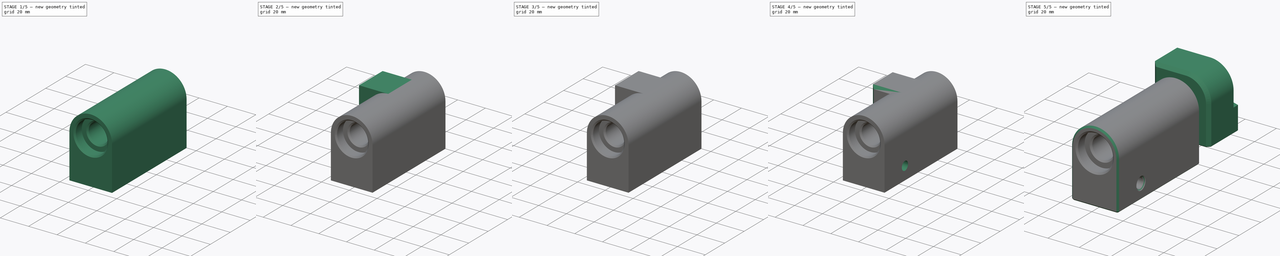
[diagram: build sequence overview — one tinted view per stage of 5, left to right]
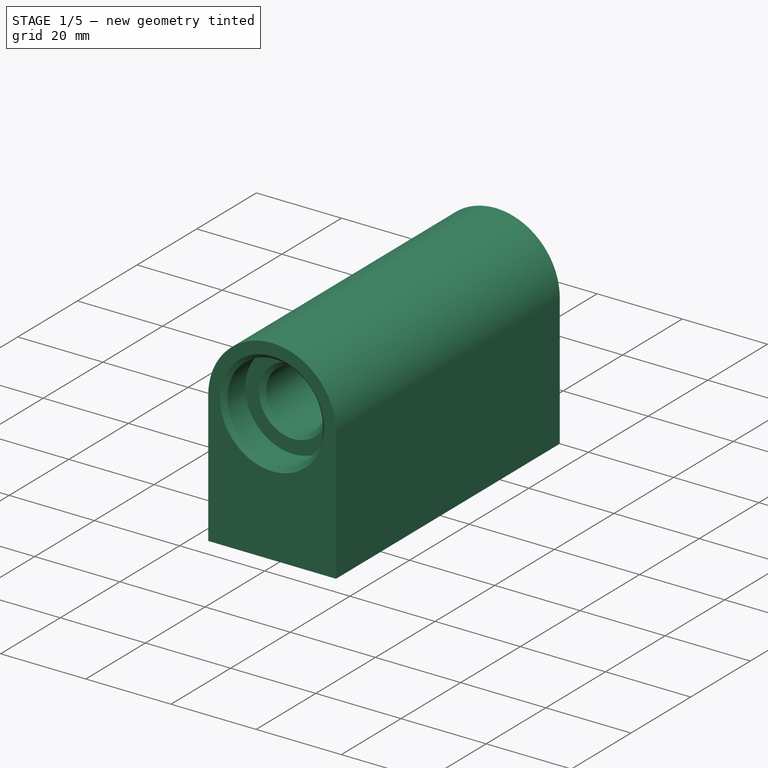
[diagram: stage 1 of 5 — iso view after this stage's code; geometry added in this stage tinted green]
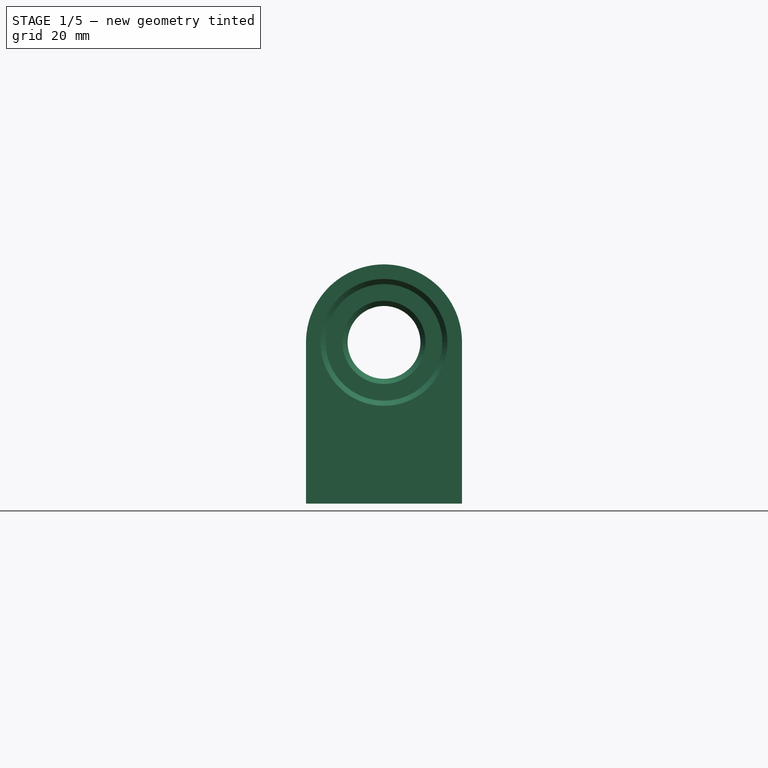
[diagram: stage 1 of 5 — front view after this stage's code; geometry added in this stage tinted green]
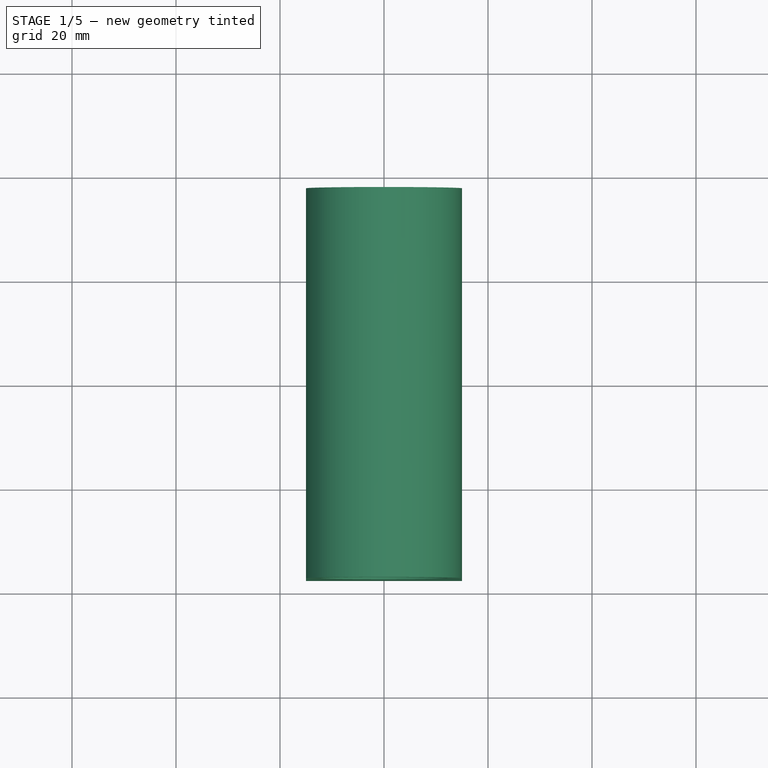
[diagram: stage 1 of 5 — top view after this stage's code; geometry added in this stage tinted green]
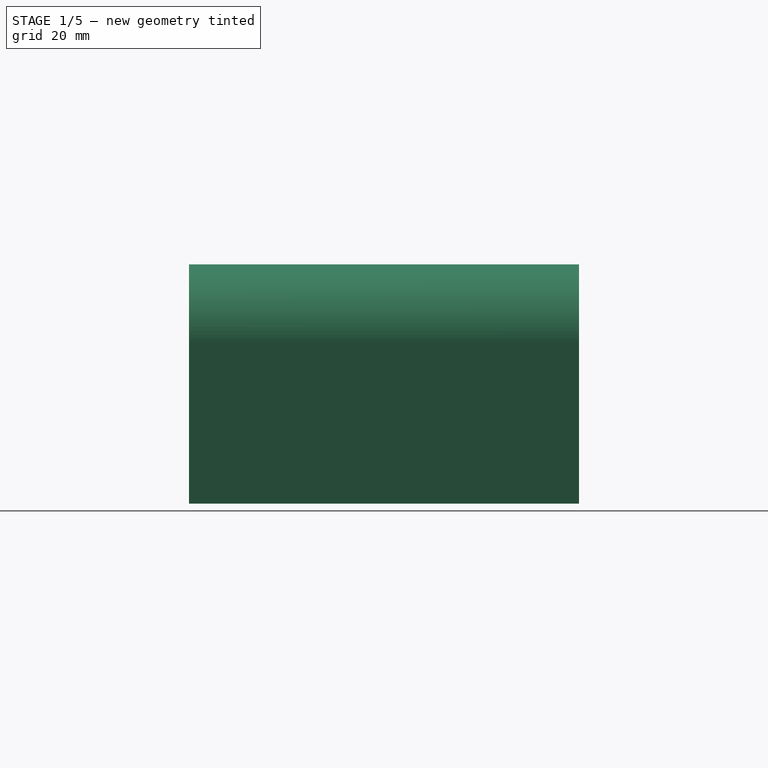
[diagram: stage 1 of 5 — right view after this stage's code; geometry added in this stage tinted green]
FCSTD DOCUMENT  (FreeCAD 1.2R20260120 (Git shallow))
Label: linear-actuatorFCStd
License: All rights reserved
LicenseURL: https://en.wikipedia.org/wiki/All_rights_reserved
objects: Sketcher::SketchObject×10, PartDesign::Chamfer×10, PartDesign::Pocket×7, Part::Feature×4, App::Point×4, PartDesign::Pad×3, PartDesign::Body×2, App::Part×2, PartDesign::Mirrored×1, PartDesign::Fillet×1, Part::Mirroring×1
note: 92 computed .brp shape members not serialized (recipe doc carries the construction recipe); baked Part::Feature solids carry a one-line shape summary decoded from their .brp

FEATURE [Part::Feature] Compound  label="Linearmotor"
  Placement = pos=(34.4295,-24.7767,-32.4545) rot=(0,0,1;0rad)
  shape: bbox 42 x 82 x 204.7 mm, 79 faces, 2 solids (baked)
FEATURE [Part::Feature] Compound001  label="Schrauben für Motor"
  Placement = pos=(34.4295,-24.7767,-32.4545) rot=(0,0,1;0rad)
  shape: bbox 8.679 x 36.43 x 11.48 mm, 102 faces, 2 solids (baked)
FEATURE [App::Point] Origin077  label="Origine"
  Role = Origin
FEATURE [App::Point] Origin078  label="Origine001"
  Role = Origin
FEATURE [App::Point] Origin079  label="Origine002"
  Role = Origin
FEATURE [App::Point] Origin080  label="Origine003"
  Role = Origin
FEATURE [Sketcher::SketchObject] Sketch073
  ArcFitTolerance = 1e-06
  AttachmentSupport = -> [XZ_Plane028]
  ExternalTypes = [0]
  FullyConstrained = true
  MakeInternals = false
  MapMode = 5
  Placement = pos=(0,0,0) rot=(1,0,0;1.5708rad)
  sketch-geometry (6):
    g0: ArcOfCircle CenterX=0 CenterY=0 CenterZ=0 NormalX=0 NormalY=0 NormalZ=1 AngleXU=0 Radius=15 StartAngle=4.1875e-12 EndAngle=3.14159
    g1: LineSegment StartX=-15 StartY=9.40932e-11 StartZ=0 EndX=-15 EndY=-31 EndZ=0
    g2: LineSegment StartX=-15 StartY=-31 StartZ=0 EndX=15 EndY=-31 EndZ=0
    g3: LineSegment StartX=15 StartY=-31 StartZ=0 EndX=15 EndY=0 EndZ=0
    g4: Circle [constr] CenterX=0 CenterY=0 CenterZ=0 NormalX=0 NormalY=0 NormalZ=1 AngleXU=0 Radius=11
    g5: GeomPoint [constr] X=0 Y=-11 Z=0
  constraints (16):
    c: Coincident(g0,g-1)
    c: PointOnObject(g0,g-1)
    c: PointOnObject(g0,g-1)
    c: Coincident(g1,g0)
    c: Vertical(g1)
    c: Coincident(g1,g2)
    c: Horizontal(g2)
    c: Coincident(g2,g3)
    c: Coincident(g3,g0)
    c: Vertical(g3)
    c: Coincident(g4,g0)
    c: Diameter(g4) = 22
    c: DistanceX(g2,g2) = 30
    c: PointOnObject(g5,g4)
    c: PointOnObject(g5,g-2)
    c: DistanceY(g2,g5) = 20
FEATURE [PartDesign::Pad] Pad038
  AlongSketchNormal = false
  Direction = (0,-1,2e-16)
  Length = 75
  Length2 = 10
  Placement = pos=(0,0,0) rot=(1,0,0;1.5708rad)
  Profile = -> Sketch073
  ReferenceAxis = -> Sketch073 [N_Axis]
  Refine = true
  SideType = 2
  Suppressed = false
  Type = 0
  Type2 = 0
FEATURE [Sketcher::SketchObject] Sketch074
  ArcFitTolerance = 1e-06
  AttachmentSupport = -> [XZ_Plane028]
  ExternalTypes = [0]
  FullyConstrained = true
  MakeInternals = false
  MapMode = 5
  Placement = pos=(0,0,0) rot=(1,0,0;1.5708rad)
  sketch-geometry (1):
    g0: Circle CenterX=0 CenterY=0 CenterZ=0 NormalX=0 NormalY=0 NormalZ=1 AngleXU=0 Radius=7
  constraints (2):
    c: Coincident(g0,g-1)
    c: Diameter(g0) = 14
FEATURE [PartDesign::Pocket] Pocket033
  AlongSketchNormal = false
  BaseFeature = -> Pad038
  Direction = (0,1,-2e-16)
  Length = 100
  Length2 = 10
  Placement = pos=(0,0,0) rot=(1,0,0;1.5708rad)
  Profile = -> Sketch074
  ReferenceAxis = -> Sketch074 [N_Axis]
  Refine = true
  SideType = 2
  Suppressed = false
  Type = 0
  Type2 = 0
FEATURE [Sketcher::SketchObject] Sketch075
  ArcFitTolerance = 1e-06
  AttachmentSupport = -> [Pocket033]
  ExternalTypes = [0]
  FullyConstrained = true
  MakeInternals = false
  MapMode = 5
  Placement = pos=(0,-37.5,0) rot=(1,0,0;1.5708rad)
  sketch-geometry (1):
    g0: Circle CenterX=0 CenterY=0 CenterZ=0 NormalX=0 NormalY=0 NormalZ=1 AngleXU=0 Radius=11.2
  constraints (2):
    c: Coincident(g0,g-1)
    c: Diameter(g0) = 22.4
FEATURE [PartDesign::Pocket] Pocket034
  AlongSketchNormal = false
  BaseFeature = -> Pocket033
  Direction = (0,1,-2e-16)
  Length = 7
  Length2 = 10
  Placement = pos=(0,0,0) rot=(1,0,0;1.5708rad)
  Profile = -> Sketch075
  ReferenceAxis = -> Sketch075 [N_Axis]
  Refine = true
  SideType = 0
  Suppressed = false
  Type = 0
  Type2 = 0
FEATURE [PartDesign::Mirrored] Mirrored002
  BaseFeature = -> Pocket034
  MirrorPlane = -> XZ_Plane028
  Originals = -> [Pocket034]
  Placement = pos=(0,0,0) rot=(1,0,0;1.5708rad)
  Refine = true
  Suppressed = false
  TransformMode = 0
FEATURE [PartDesign::Chamfer] Chamfer033
  Angle = 45
  Base = -> Mirrored002 [Edge12,Edge19,Edge14,Edge20]
  BaseFeature = -> Mirrored002
  ChamferType = 0
  FlipDirection = false
  Placement = pos=(0,0,0) rot=(1,0,0;1.5708rad)
  Refine = true
  Size = 1
  Size2 = 1
  SupportTransform = false
  Suppressed = false
  UseAllEdges = false
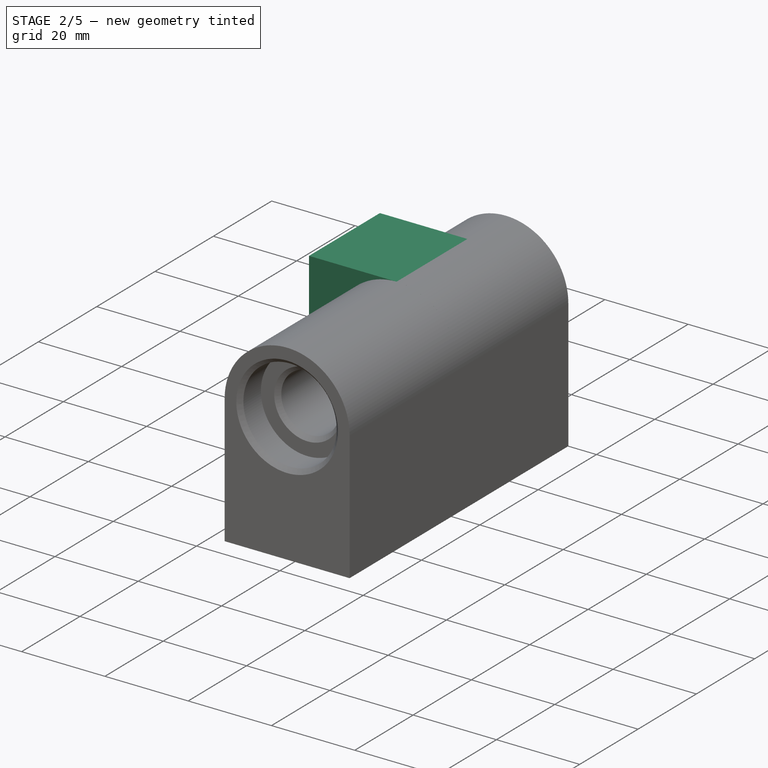
[diagram: stage 2 of 5 — iso view after this stage's code; geometry added in this stage tinted green]
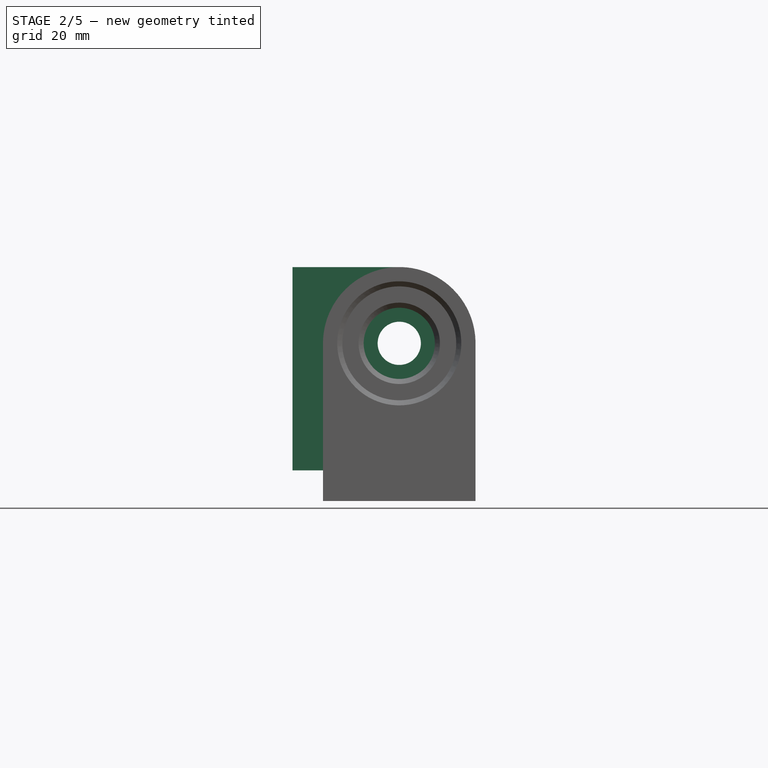
[diagram: stage 2 of 5 — front view after this stage's code; geometry added in this stage tinted green]
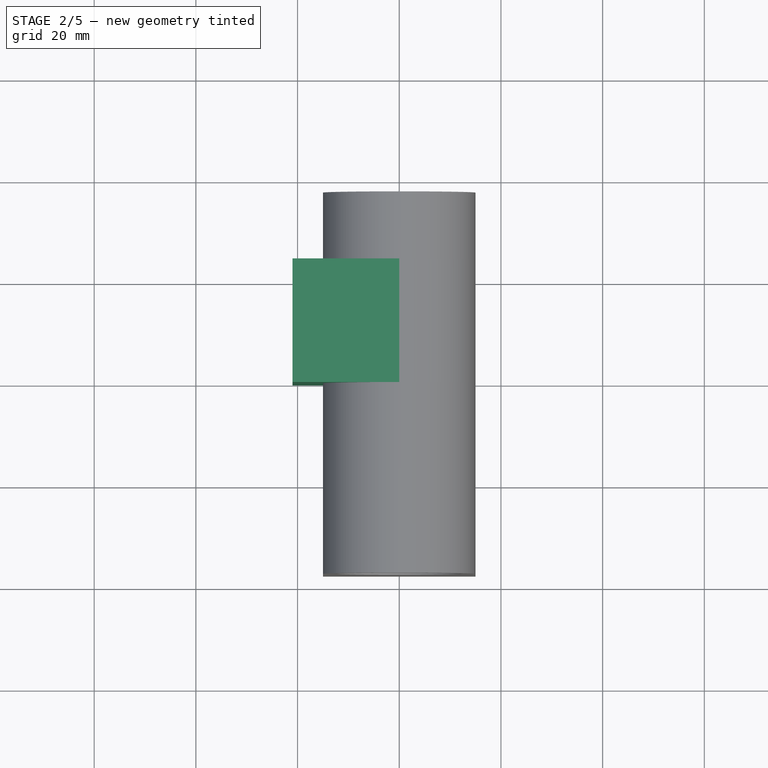
[diagram: stage 2 of 5 — top view after this stage's code; geometry added in this stage tinted green]
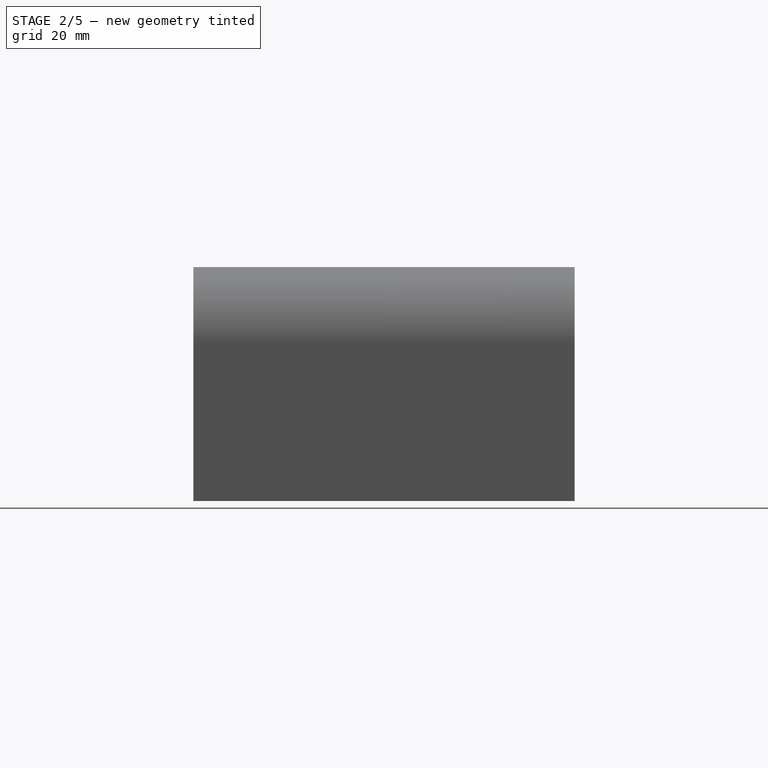
[diagram: stage 2 of 5 — right view after this stage's code; geometry added in this stage tinted green]
FEATURE [Sketcher::SketchObject] Sketch085
  ArcFitTolerance = 1e-06
  AttachmentSupport = -> [Chamfer033]
  ExternalTypes = [0]
  FullyConstrained = true
  MakeInternals = false
  MapMode = 5
  Placement = pos=(0,-6.9e-15,-31) rot=(1,0,0;3.14159rad)
  sketch-geometry (10):
    g0: LineSegment [constr] StartX=-19.5 StartY=-37.5 StartZ=0 EndX=-19.5 EndY=37.5 EndZ=0
    g1: LineSegment [constr] StartX=-19.5 StartY=37.5 StartZ=0 EndX=19.5 EndY=37.5 EndZ=0
    g2: LineSegment [constr] StartX=19.5 StartY=37.5 StartZ=0 EndX=19.5 EndY=-37.5 EndZ=0
    g3: LineSegment [constr] StartX=19.5 StartY=-37.5 StartZ=0 EndX=-19.5 EndY=-37.5 EndZ=0
    g4: GeomPoint [constr] X=0 Y=0 Z=0
    g5: LineSegment StartX=-9 StartY=25.5 StartZ=0 EndX=-9 EndY=7.5 EndZ=0
    g6: LineSegment StartX=-9 StartY=7.5 StartZ=0 EndX=9 EndY=7.5 EndZ=0
    g7: LineSegment StartX=9 StartY=7.5 StartZ=0 EndX=9 EndY=25.5 EndZ=0
    g8: LineSegment StartX=9 StartY=25.5 StartZ=0 EndX=-9 EndY=25.5 EndZ=0
    g9: GeomPoint [constr] X=0 Y=16.5 Z=0
  constraints (25):
    c: Coincident(g0,g1)
    c: Coincident(g1,g2)
    c: Coincident(g2,g3)
    c: Coincident(g3,g0)
    c: Horizontal(g1)
    c: Horizontal(g3)
    c: Vertical(g0)
    c: Vertical(g2)
    c: Symmetric(g1,g0,g4)
    c: Coincident(g4,g-1)
    c: DistanceX(g1,g1) = 39
    c: DistanceY(g0,g0) = 75
    c: Coincident(g5,g6)
    c: Coincident(g6,g7)
    c: Coincident(g7,g8)
    c: Coincident(g8,g5)
    c: Horizontal(g6)
    c: Horizontal(g8)
    c: Vertical(g5)
    c: Vertical(g7)
    c: Symmetric(g6,g5,g9)
    c: PointOnObject(g9,g-2)
    c: DistanceY(g6,g1) = 30
    c: DistanceY(g7,g1) = 12
    c: DistanceX(g8,g8) = 18
FEATURE [PartDesign::Pocket] Pocket043
  AlongSketchNormal = false
  BaseFeature = -> Chamfer033
  Direction = (0,0,1)
  Length = 19
  Length2 = 10
  Placement = pos=(0,0,0) rot=(1,0,0;1.5708rad)
  Profile = -> Sketch085
  ReferenceAxis = -> Sketch085 [N_Axis]
  Refine = true
  SideType = 0
  Suppressed = false
  Type = 0
  Type2 = 0
FEATURE [PartDesign::Chamfer] Chamfer036
  Angle = 45
  Base = -> Pocket043 [Edge23,Edge26,Edge28,Edge24]
  BaseFeature = -> Pocket043
  ChamferType = 0
  FlipDirection = false
  Placement = pos=(0,0,0) rot=(1,0,0;1.5708rad)
  Refine = true
  Size = 2
  Size2 = 1
  SupportTransform = false
  Suppressed = false
  UseAllEdges = false
FEATURE [PartDesign::Body] Body023  label="BrideLinear"
  AllowCompound = true
  Group = -> [Sketch073,Pad038,Sketch074,Pocket033,Sketch075,Pocket034,Mirrored002,Chamfer033,Sketch085,Pocket043,Chamfer036,Sketch086,Pocket044,Chamfer037,Chamfer038,Chamfer039]
  Origin = -> Origin034
  Tip = -> Chamfer039
FEATURE [Sketcher::SketchObject] Sketch087
  ArcFitTolerance = 1e-06
  AttachmentSupport = -> [XZ_Plane029]
  ExternalTypes = [0]
  FullyConstrained = true
  MakeInternals = false
  MapMode = 5
  Placement = pos=(0,0,0) rot=(1,0,0;1.5708rad)
  sketch-geometry (5):
    g0: Circle CenterX=0 CenterY=0 CenterZ=0 NormalX=0 NormalY=0 NormalZ=1 AngleXU=0 Radius=4.25
    g1: LineSegment StartX=-21 StartY=-25 StartZ=0 EndX=15 EndY=-25 EndZ=0
    g2: LineSegment StartX=15 StartY=-25 StartZ=0 EndX=15 EndY=15 EndZ=0
    g3: LineSegment StartX=15 StartY=15 StartZ=0 EndX=-21 EndY=15 EndZ=0
    g4: LineSegment StartX=-21 StartY=15 StartZ=0 EndX=-21 EndY=-25 EndZ=0
  constraints (14):
    c: Coincident(g0,g-1)
    c: Diameter(g0) = 8.5
    c: Coincident(g1,g2)
    c: Coincident(g2,g3)
    c: Coincident(g3,g4)
    c: Coincident(g4,g1)
    c: Horizontal(g1)
    c: Horizontal(g3)
    c: Vertical(g2)
    c: Vertical(g4)
    c: DistanceX(g3,g0) = 21
    c: DistanceY(g0,g3) = 15
    c: DistanceX(g0,g2) = 15
    c: DistanceY(g4,g4) = 40
FEATURE [PartDesign::Pad] Pad039
  AlongSketchNormal = false
  Direction = (0,-1,2e-16)
  Length = 24.3
  Length2 = 10
  Placement = pos=(0,0,0) rot=(1,0,0;1.5708rad)
  Profile = -> Sketch087
  ReferenceAxis = -> Sketch087 [N_Axis]
  Refine = true
  Reversed = true
  SideType = 0
  Suppressed = false
  Type = 0
  Type2 = 0
FEATURE [PartDesign::Fillet] Fillet015
  Base = -> Pad039 [Edge5]
  BaseFeature = -> Pad039
  Placement = pos=(0,0,0) rot=(1,0,0;1.5708rad)
  Radius = 15
  Refine = true
  SupportTransform = false
  Suppressed = false
  UseAllEdges = false
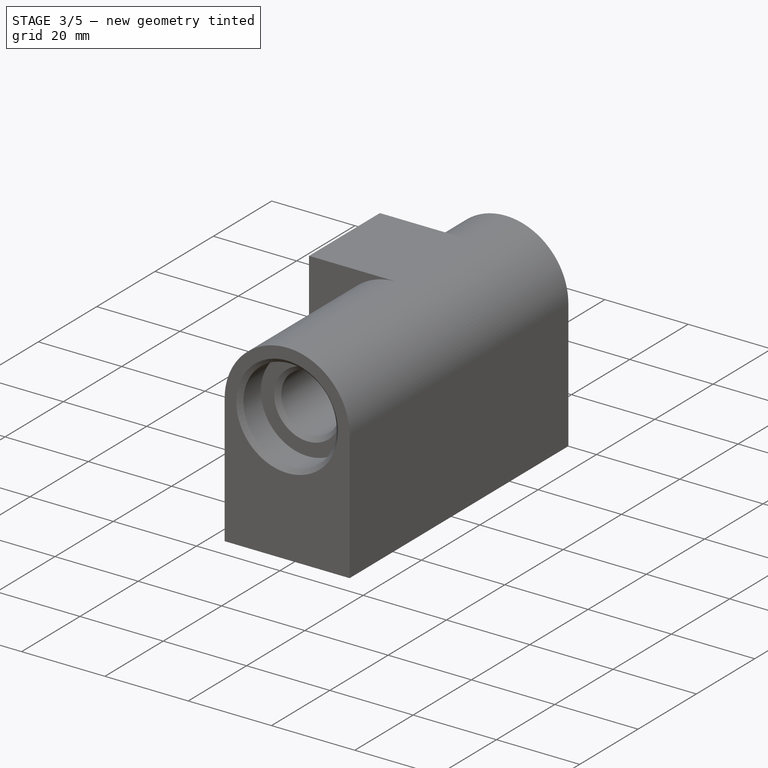
[diagram: stage 3 of 5 — iso view after this stage's code; geometry added in this stage tinted green]
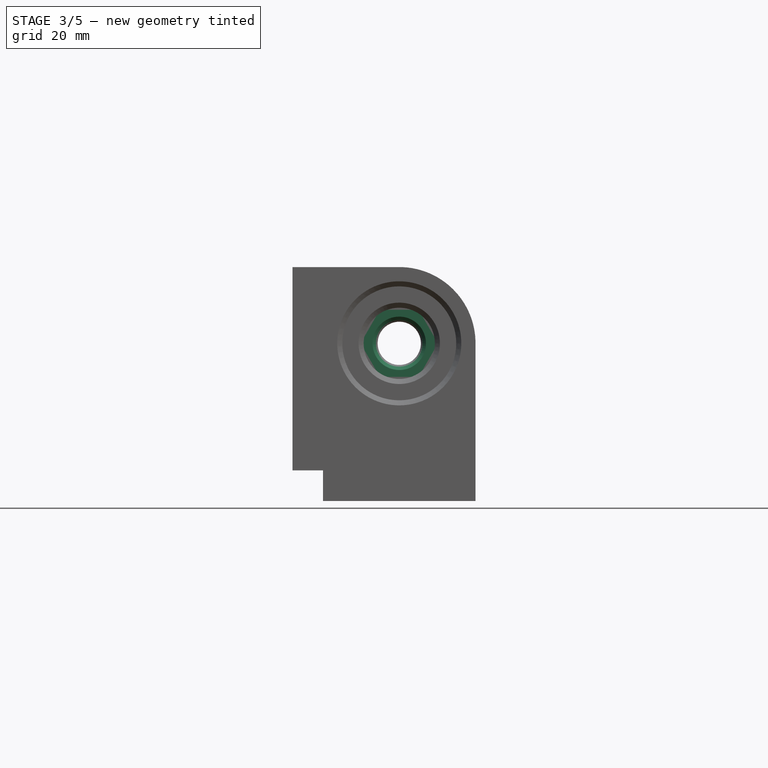
[diagram: stage 3 of 5 — front view after this stage's code; geometry added in this stage tinted green]
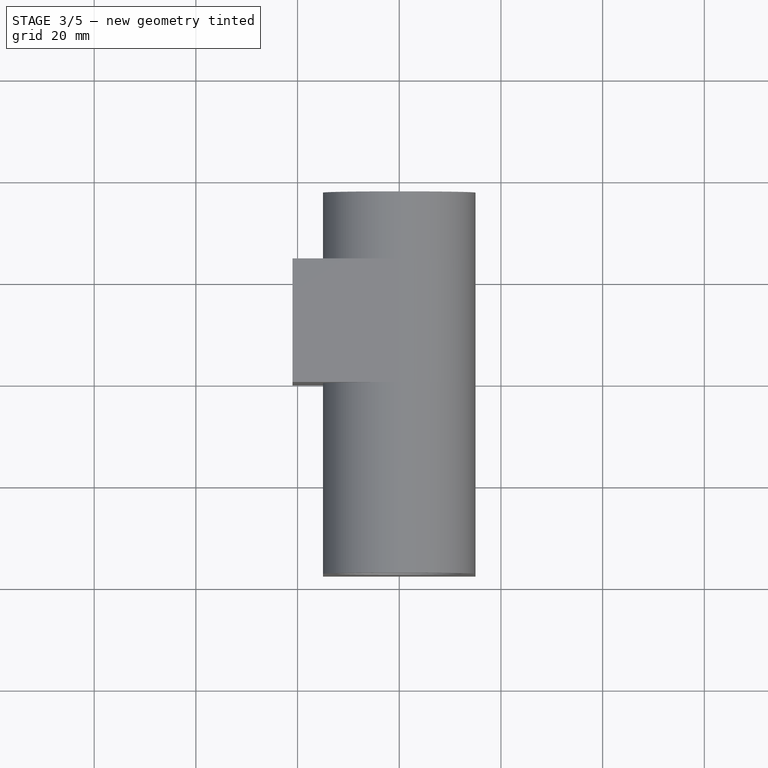
[diagram: stage 3 of 5 — top view after this stage's code; geometry added in this stage tinted green]
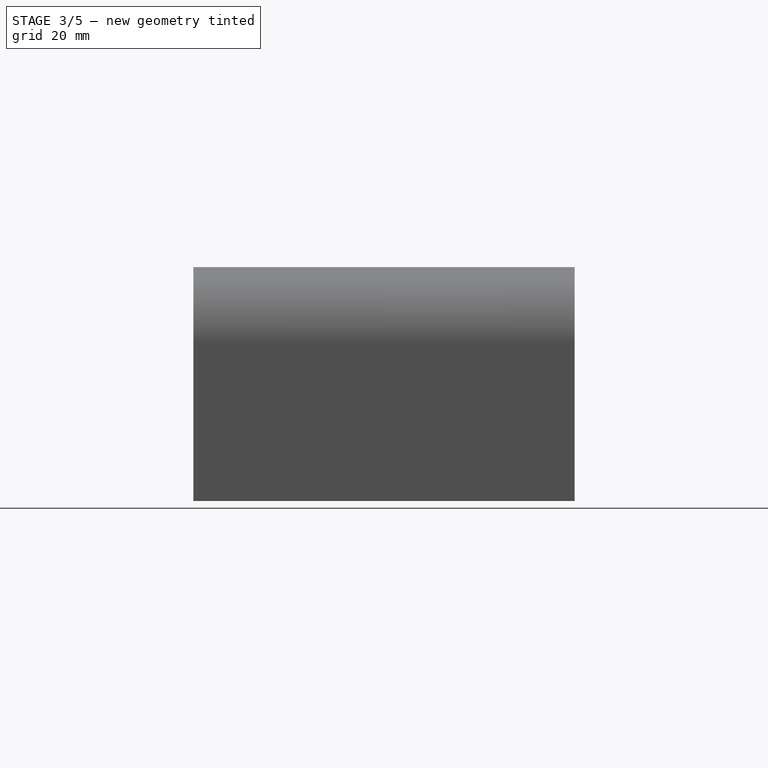
[diagram: stage 3 of 5 — right view after this stage's code; geometry added in this stage tinted green]
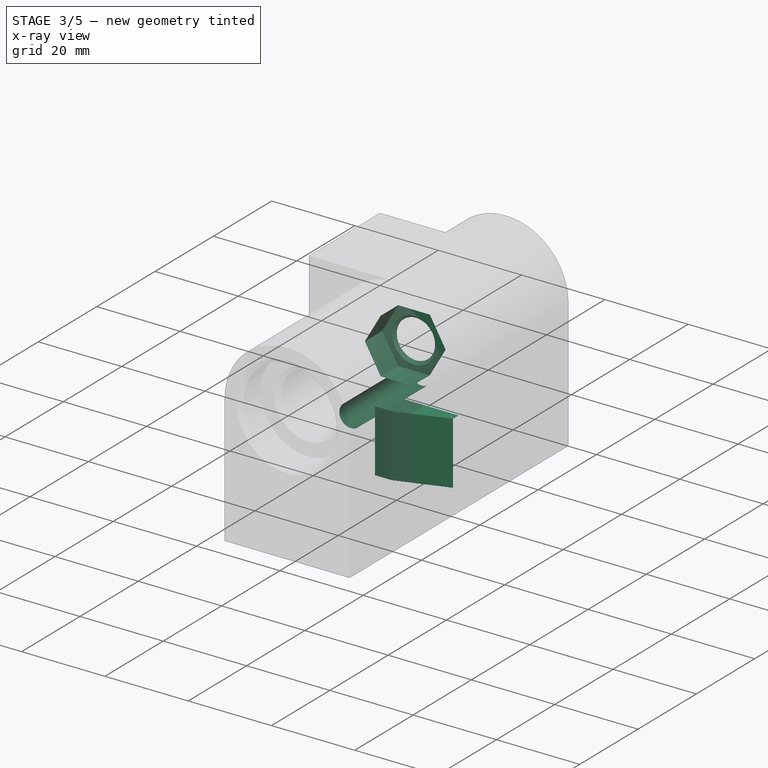
[diagram: stage 3 of 5 — x-ray composite at the iso view; earlier geometry ghosted, this stage's added geometry solid]
FEATURE [Sketcher::SketchObject] Sketch088
  ArcFitTolerance = 1e-06
  AttachmentSupport = -> [Fillet015]
  ExternalTypes = [0]
  FullyConstrained = true
  MakeInternals = false
  MapMode = 5
  Placement = pos=(0,-1e-15,0) rot=(1,0,0;1.5708rad)
  sketch-geometry (7):
    g0: LineSegment StartX=7.62102 StartY=0 StartZ=0 EndX=3.81051 EndY=6.6 EndZ=0
    g1: LineSegment StartX=3.81051 StartY=6.6 StartZ=0 EndX=-3.81051 EndY=6.6 EndZ=0
    g2: LineSegment StartX=-3.81051 StartY=6.6 StartZ=0 EndX=-7.62102 EndY=9e-16 EndZ=0
    g3: LineSegment StartX=-7.62102 StartY=1e-15 StartZ=0 EndX=-3.81051 EndY=-6.6 EndZ=0
    g4: LineSegment StartX=-3.81051 StartY=-6.6 StartZ=0 EndX=3.81051 EndY=-6.6 EndZ=0
    g5: LineSegment StartX=3.81051 StartY=-6.6 StartZ=0 EndX=7.62102 EndY=0 EndZ=0
    g6: Circle [constr] CenterX=0 CenterY=0 CenterZ=0 NormalX=0 NormalY=0 NormalZ=1 AngleXU=0 Radius=7.62102
  constraints (16):
    c: Coincident(g0,g1)
    c: Coincident(g1,g2)
    c: Coincident(g2,g3)
    c: Coincident(g3,g4)
    c: Coincident(g4,g5)
    c: Coincident(g5,g0)
    c: Equal(g0, g1-g5) x5
    c: PointOnObject(g0,g6)
    c: PointOnObject(g1,g6)
    c: PointOnObject(g2,g6)
    c: PointOnObject(g3,g6)
    c: PointOnObject(g4,g6)
    c: PointOnObject(g5,g6)
    c: Coincident(g6,g-1)
    c: DistanceY(g4,g0) = 13.2
    c: PointOnObject(g0,g-1)
FEATURE [PartDesign::Pocket] Pocket045
  AlongSketchNormal = false
  BaseFeature = -> Fillet015
  Direction = (0,1,-2e-16)
  Length = 6
  Length2 = 10
  Placement = pos=(0,0,0) rot=(1,0,0;1.5708rad)
  Profile = -> Sketch088
  ReferenceAxis = -> Sketch088 [N_Axis]
  Refine = true
  SideType = 0
  Suppressed = false
  Type = 0
  Type2 = 0
FEATURE [PartDesign::Chamfer] Chamfer040
  Angle = 45
  Base = -> Pocket045 [Edge35]
  BaseFeature = -> Pocket045
  ChamferType = 0
  FlipDirection = false
  Placement = pos=(0,0,0) rot=(1,0,0;1.5708rad)
  Refine = true
  Size = 1
  Size2 = 1
  SupportTransform = false
  Suppressed = false
  UseAllEdges = false
FEATURE [Sketcher::SketchObject] Sketch089
  ArcFitTolerance = 1e-06
  AttachmentSupport = -> [Chamfer040]
  ExternalTypes = [0]
  FullyConstrained = true
  MakeInternals = false
  MapMode = 5
  Placement = pos=(0,-1e-15,0) rot=(1,0,0;1.5708rad)
  sketch-geometry (4):
    g0: LineSegment StartX=15 StartY=-25 StartZ=0 EndX=-1 EndY=-25 EndZ=0
    g1: LineSegment StartX=-1 StartY=-25 StartZ=0 EndX=-1 EndY=-10 EndZ=0
    g2: LineSegment StartX=-1 StartY=-10 StartZ=0 EndX=15 EndY=-10 EndZ=0
    g3: LineSegment StartX=15 StartY=-10 StartZ=0 EndX=15 EndY=-25 EndZ=0
  constraints (11):
    c: Coincident(g0,g1)
    c: Coincident(g1,g2)
    c: Coincident(g2,g3)
    c: Coincident(g3,g0)
    c: Horizontal(g0)
    c: Horizontal(g2)
    c: Vertical(g1)
    c: Vertical(g3)
    c: Coincident(g0,g-3)
    c: DistanceX(g-3,g0) = 20
    c: DistanceY(g1,g1) = 15
FEATURE [PartDesign::Pad] Pad040
  AlongSketchNormal = false
  BaseFeature = -> Chamfer040
  Direction = (0,-1,2e-16)
  Length = 6
  Length2 = 10
  Placement = pos=(0,0,0) rot=(1,0,0;1.5708rad)
  Profile = -> Sketch089
  ReferenceAxis = -> Sketch089 [N_Axis]
  Refine = true
  SideType = 0
  Suppressed = false
  Type = 0
  Type2 = 0
FEATURE [PartDesign::Chamfer] Chamfer041
  Angle = 45
  Base = -> Pad040 [Edge45]
  BaseFeature = -> Pad040
  ChamferType = 1
  FlipDirection = false
  Placement = pos=(0,0,0) rot=(1,0,0;1.5708rad)
  Refine = true
  Size = 12
  Size2 = 4
  SupportTransform = false
  Suppressed = false
  UseAllEdges = false
FEATURE [Sketcher::SketchObject] Sketch090
  ArcFitTolerance = 1e-06
  AttachmentOffset = pos=(0,0,0) rot=(0,0,1;3.14159rad)
  AttachmentSupport = -> [Chamfer041]
  ExternalTypes = [0]
  FullyConstrained = true
  MakeInternals = false
  MapMode = 5
  Placement = pos=(0,24.3,0) rot=(0,0.707107,0.707107;3.14159rad)
  sketch-geometry (1):
    g0: Circle CenterX=11 CenterY=-17 CenterZ=0 NormalX=0 NormalY=0 NormalZ=1 AngleXU=0 Radius=2.75
  constraints (3):
    c: DistanceX(g0,g-4) = 10
    c: Diameter(g0) = 5.5
    c: DistanceY(g-4,g0) = 8
FEATURE [PartDesign::Pocket] Pocket046
  AlongSketchNormal = false
  BaseFeature = -> Chamfer041
  Direction = (0,-1,-2e-16)
  Length = 40
  Length2 = 10
  Placement = pos=(0,0,0) rot=(1,0,0;1.5708rad)
  Profile = -> Sketch090
  ReferenceAxis = -> Sketch090 [N_Axis]
  Refine = true
  SideType = 0
  Suppressed = false
  Type = 0
  Type2 = 0
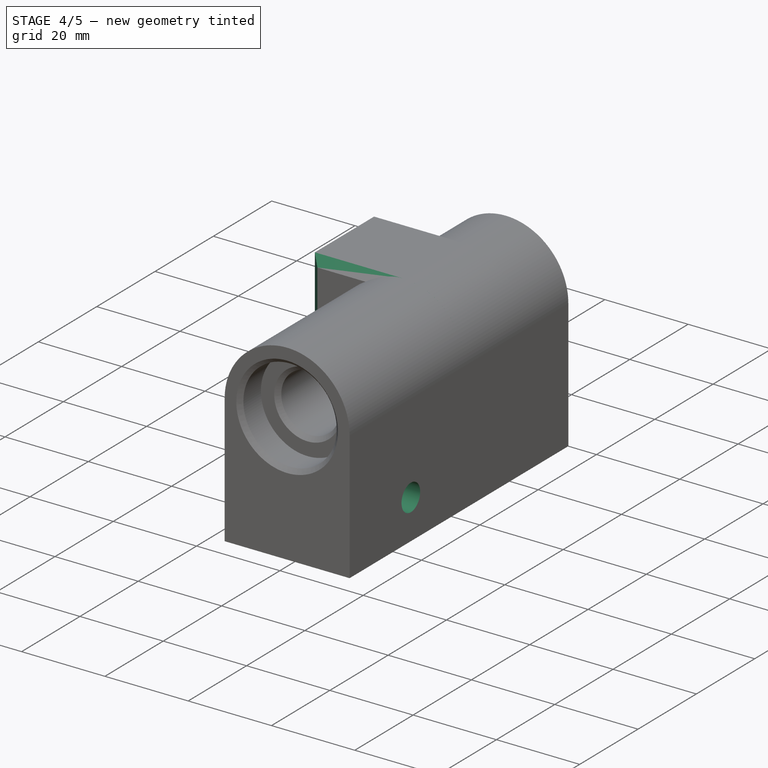
[diagram: stage 4 of 5 — iso view after this stage's code; geometry added in this stage tinted green]
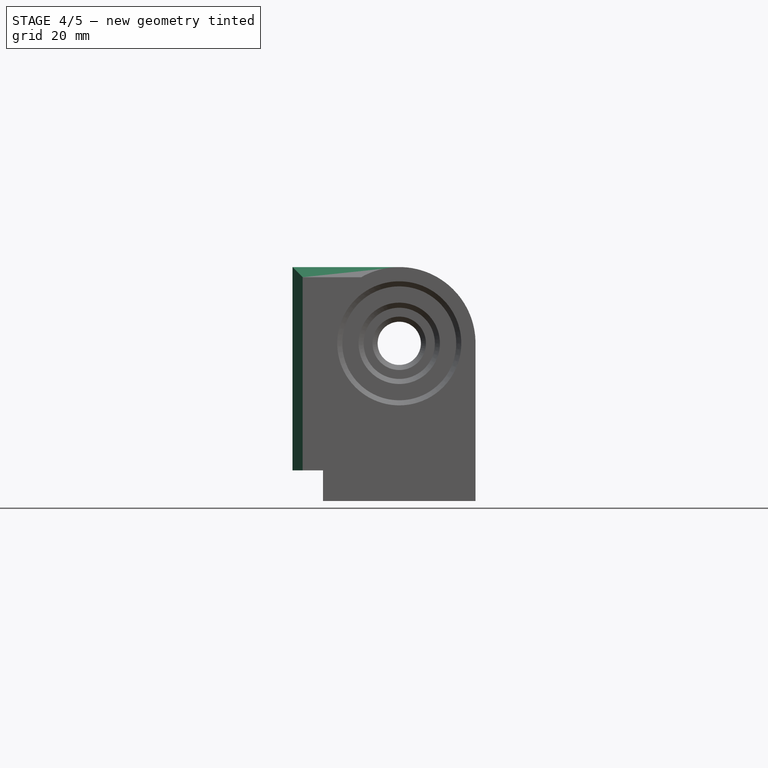
[diagram: stage 4 of 5 — front view after this stage's code; geometry added in this stage tinted green]
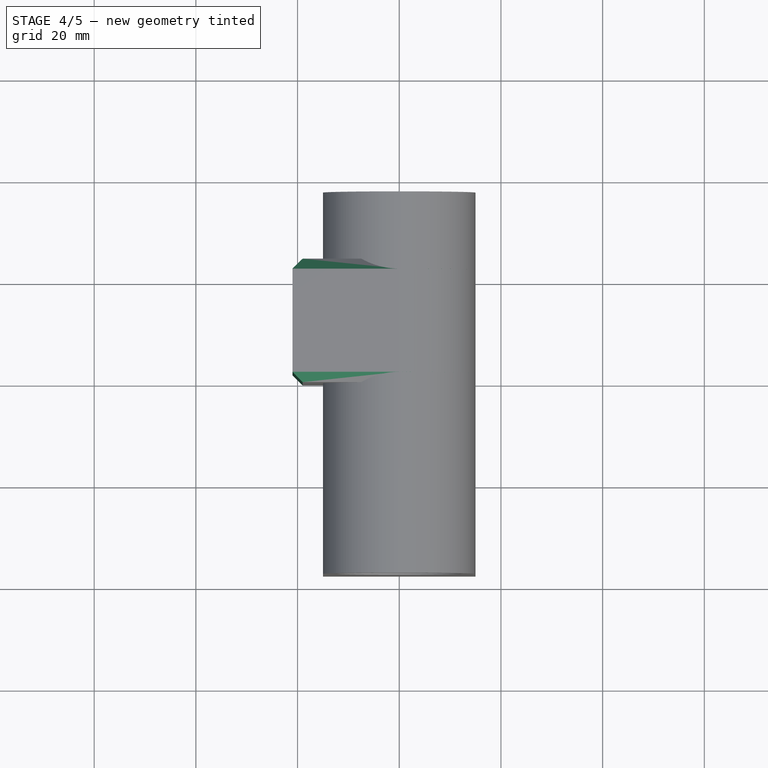
[diagram: stage 4 of 5 — top view after this stage's code; geometry added in this stage tinted green]
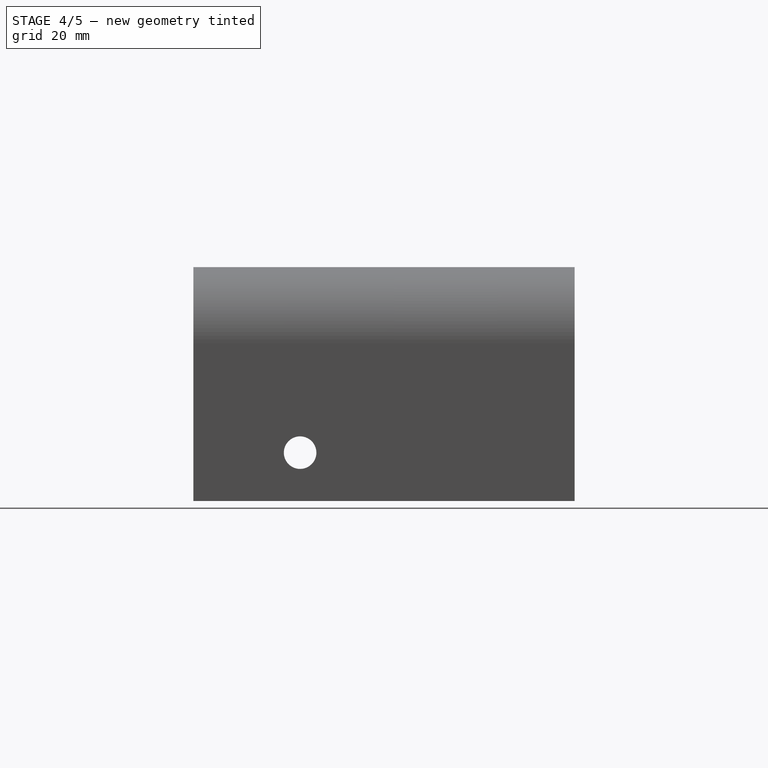
[diagram: stage 4 of 5 — right view after this stage's code; geometry added in this stage tinted green]
FEATURE [Sketcher::SketchObject] Sketch086
  ArcFitTolerance = 1e-06
  AttachmentSupport = -> [Chamfer036]
  ExternalGeometry = -> [Chamfer036]
  ExternalTypes = [0,0]
  FullyConstrained = true
  MakeInternals = false
  MapMode = 5
  Placement = pos=(9,0,0) rot=(0.707107,0,-0.707107;3.14159rad)
  sketch-geometry (1):
    g0: Circle CenterX=21.5 CenterY=16.5 CenterZ=0 NormalX=0 NormalY=0 NormalZ=1 AngleXU=0 Radius=3.2
  constraints (2):
    c: Diameter(g0) = 6.4
    c: Symmetric(g-4,g-3,g0)
FEATURE [PartDesign::Pocket] Pocket044
  AlongSketchNormal = false
  BaseFeature = -> Chamfer036
  Direction = (1,0,2e-16)
  Length = 5
  Length2 = 10
  Placement = pos=(0,0,0) rot=(1,0,0;1.5708rad)
  Profile = -> Sketch086
  ReferenceAxis = -> Sketch086 [N_Axis]
  Refine = true
  SideType = 2
  Suppressed = false
  Type = 1
  Type2 = 0
FEATURE [Sketcher::SketchObject] Sketch091
  ArcFitTolerance = 1e-06
  AttachmentOffset = pos=(0,0,0) rot=(0,0,1;3.14159rad)
  AttachmentSupport = -> [Pocket046]
  ExternalTypes = [0]
  FullyConstrained = true
  MakeInternals = false
  MapMode = 5
  Placement = pos=(0,24.3,0) rot=(0,0.707107,0.707107;3.14159rad)
  sketch-geometry (1):
    g0: Circle CenterX=11 CenterY=-17 CenterZ=0 NormalX=0 NormalY=0 NormalZ=1 AngleXU=0 Radius=5.5
  constraints (2):
    c: Coincident(g0,g-3)
    c: Diameter(g0) = 11
FEATURE [PartDesign::Pocket] Pocket047
  AlongSketchNormal = false
  BaseFeature = -> Pocket046
  Direction = (0,-1,-2e-16)
  Length = 11
  Length2 = 10
  Placement = pos=(0,0,0) rot=(1,0,0;1.5708rad)
  Profile = -> Sketch091
  ReferenceAxis = -> Sketch091 [N_Axis]
  Refine = true
  SideType = 0
  Suppressed = false
  Type = 0
  Type2 = 0
FEATURE [PartDesign::Chamfer] Chamfer042
  Angle = 45
  Base = -> Pocket047 [Edge34,Edge35,Edge37]
  BaseFeature = -> Pocket047
  ChamferType = 0
  FlipDirection = false
  Placement = pos=(0,0,0) rot=(1,0,0;1.5708rad)
  Refine = true
  Size = 1
  Size2 = 1
  SupportTransform = false
  Suppressed = false
  UseAllEdges = false
FEATURE [PartDesign::Chamfer] Chamfer043
  Angle = 45
  Base = -> Chamfer042 [Edge24,Edge6,Edge5,Edge12]
  BaseFeature = -> Chamfer042
  ChamferType = 0
  FlipDirection = false
  Placement = pos=(0,0,0) rot=(1,0,0;1.5708rad)
  Refine = true
  Size = 2
  Size2 = 1
  SupportTransform = false
  Suppressed = false
  UseAllEdges = false
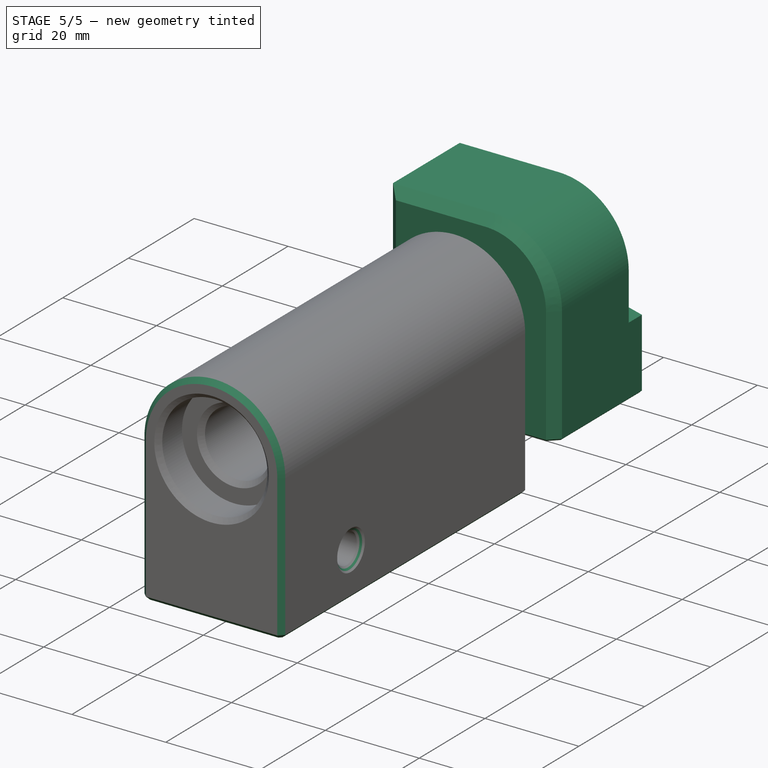
[diagram: stage 5 of 5 — iso view after this stage's code; geometry added in this stage tinted green]
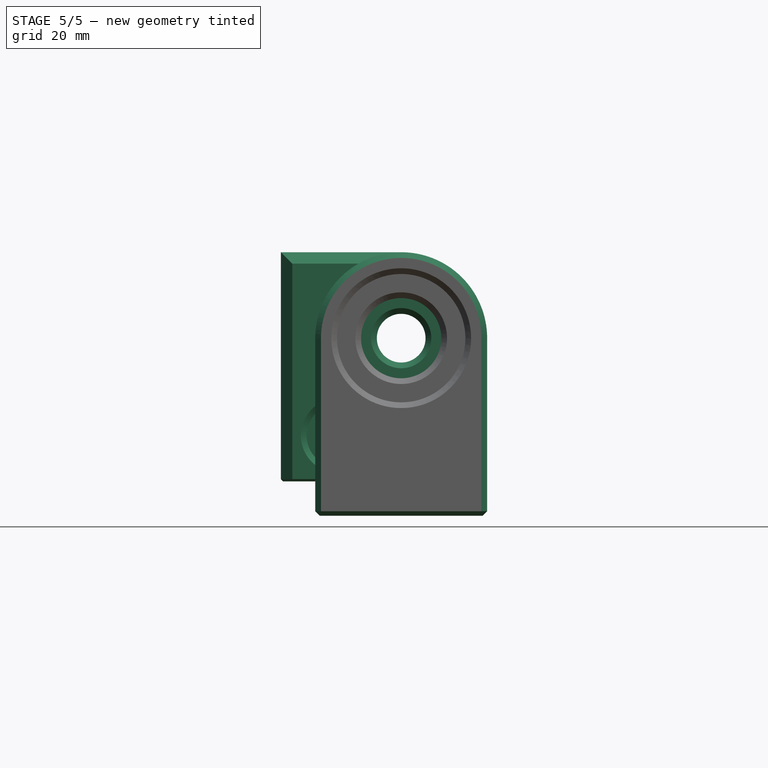
[diagram: stage 5 of 5 — front view after this stage's code; geometry added in this stage tinted green]
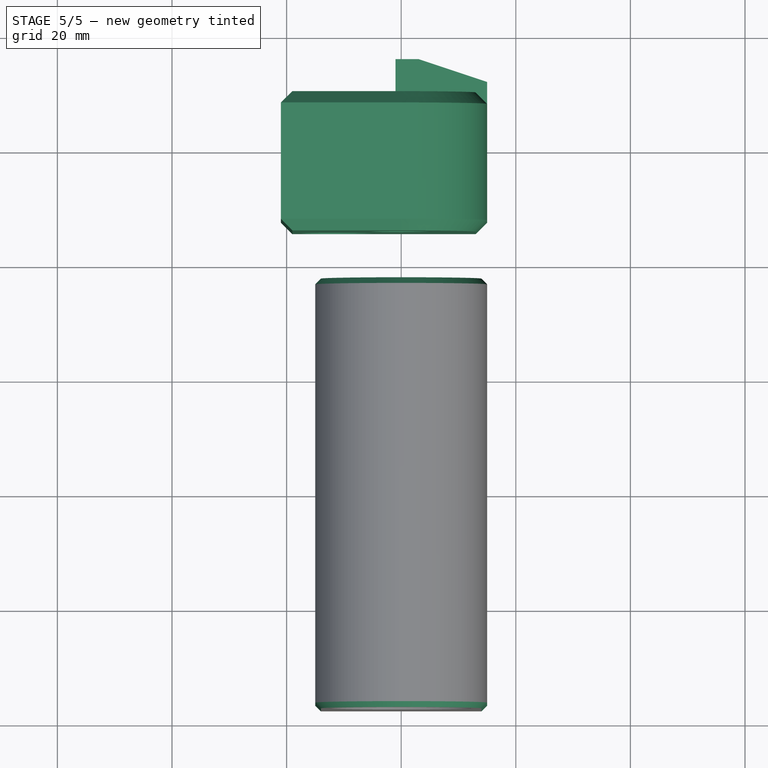
[diagram: stage 5 of 5 — top view after this stage's code; geometry added in this stage tinted green]
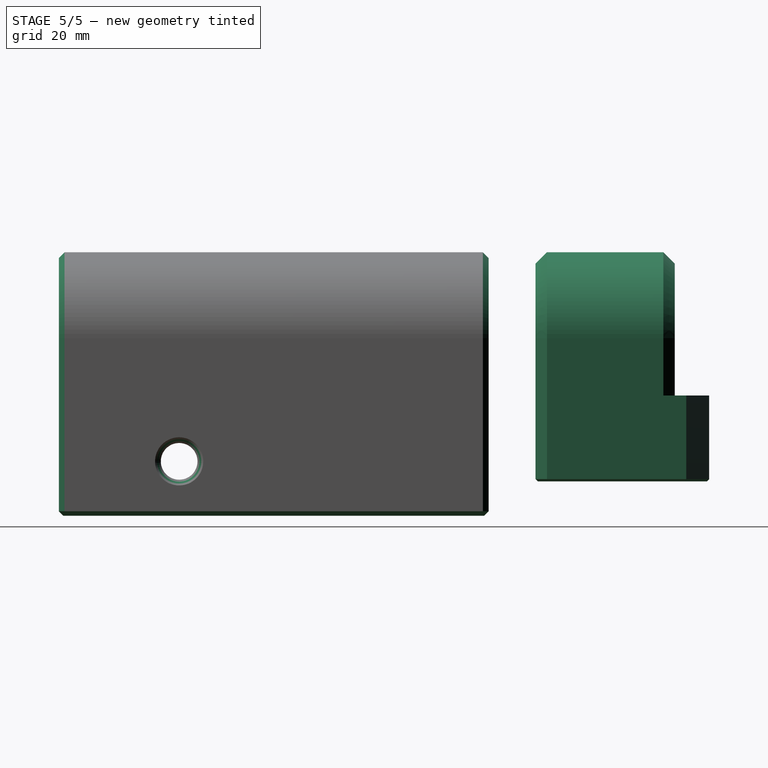
[diagram: stage 5 of 5 — right view after this stage's code; geometry added in this stage tinted green]
FEATURE [PartDesign::Chamfer] Chamfer037
  Angle = 45
  Base = -> Pocket044 [Edge37,Edge40]
  BaseFeature = -> Pocket044
  ChamferType = 0
  FlipDirection = false
  Placement = pos=(0,0,0) rot=(1,0,0;1.5708rad)
  Refine = true
  Size = 1
  Size2 = 1
  SupportTransform = false
  Suppressed = false
  UseAllEdges = false
FEATURE [PartDesign::Chamfer] Chamfer038
  Angle = 45
  Base = -> Chamfer037 [Edge46,Edge20,Edge49,Edge36]
  BaseFeature = -> Chamfer037
  ChamferType = 0
  FlipDirection = false
  Placement = pos=(0,0,0) rot=(1,0,0;1.5708rad)
  Refine = true
  Size = 1
  Size2 = 1
  SupportTransform = false
  Suppressed = false
  UseAllEdges = false
FEATURE [PartDesign::Chamfer] Chamfer039
  Angle = 45
  Base = -> Chamfer038 [Face6]
  BaseFeature = -> Chamfer038
  ChamferType = 0
  FlipDirection = false
  Placement = pos=(0,0,0) rot=(1,0,0;1.5708rad)
  Refine = true
  Size = 0.8
  Size2 = 1
  SupportTransform = false
  Suppressed = false
  UseAllEdges = false
FEATURE [PartDesign::Chamfer] Chamfer044
  Angle = 45
  Base = -> Chamfer043 [Face2]
  BaseFeature = -> Chamfer043
  ChamferType = 0
  FlipDirection = false
  Placement = pos=(0,0,0) rot=(1,0,0;1.5708rad)
  Refine = true
  Size = 0.4
  Size2 = 1
  SupportTransform = false
  Suppressed = false
  UseAllEdges = false
FEATURE [PartDesign::Body] Body024  label="BlocLateralLinear"
  AllowCompound = true
  Group = -> [Sketch087,Pad039,Fillet015,Sketch088,Pocket045,Chamfer040,Sketch089,Pad040,Chamfer041,Sketch090,Pocket046,Sketch091,Pocket047,Chamfer042,Chamfer043,Chamfer044]
  Origin = -> Origin035
  Placement = pos=(0,-70,0) rot=(0,0,1;0rad)
  Tip = -> Chamfer044
FEATURE [Part::Mirroring] Part__Mirroring004  label="BlocLateralLinear (Mirror #4)"
  Base = (0,0,0)
  Normal = (0,1,0)
  Source = -> Body024
FEATURE [Part::Feature] Solid002  label="Piston"
  Placement = pos=(34.4295,-24.7767,-32.4545) rot=(0,0,1;0rad)
  shape: bbox 21.65 x 21.65 x 138 mm, 5 faces (baked)
FEATURE [Part::Feature] Solid003  label="SOLID"
  shape: bbox 9.742 x 6.034 x 9.742 mm, 4 faces (baked)
FEATURE [App::Part] Part010  label="LinearMotor100mm"
  Group = -> [Compound,Solid002,Compound001,Solid003]
  Origin = -> Origin033
  Placement = pos=(-34,25,1.3) rot=(0,0,1;0rad)
FEATURE [App::Part] Part006  label="EnsembleActionneur"
  Group = -> [Part010,Body023,Body024,Part__Mirroring004]
  Origin = -> Origin021
  Placement = pos=(29.0023,0,-21.4383) rot=(0,-1,0;1.66679rad)
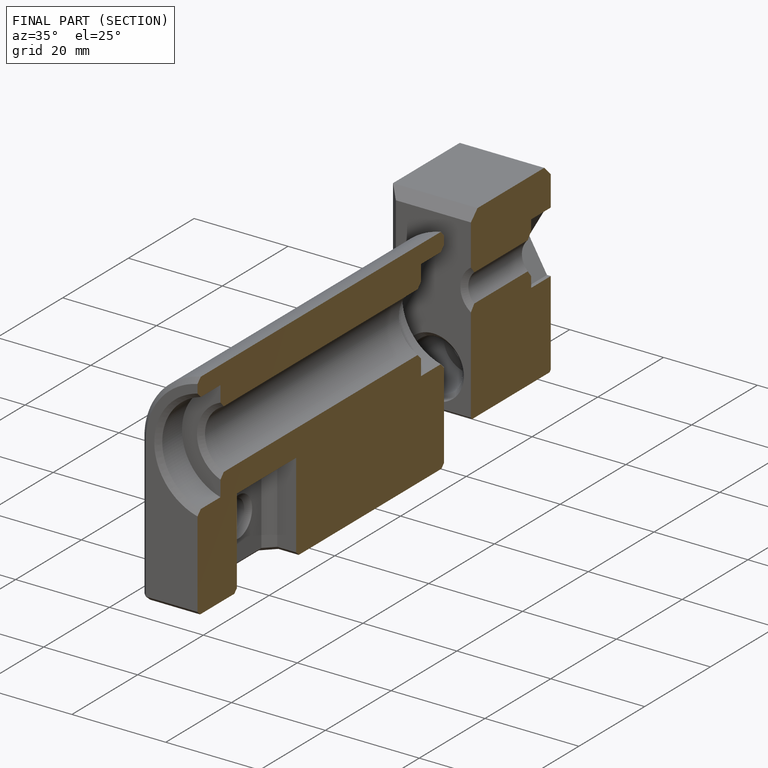
[diagram: finished part — half-section view (interior)]
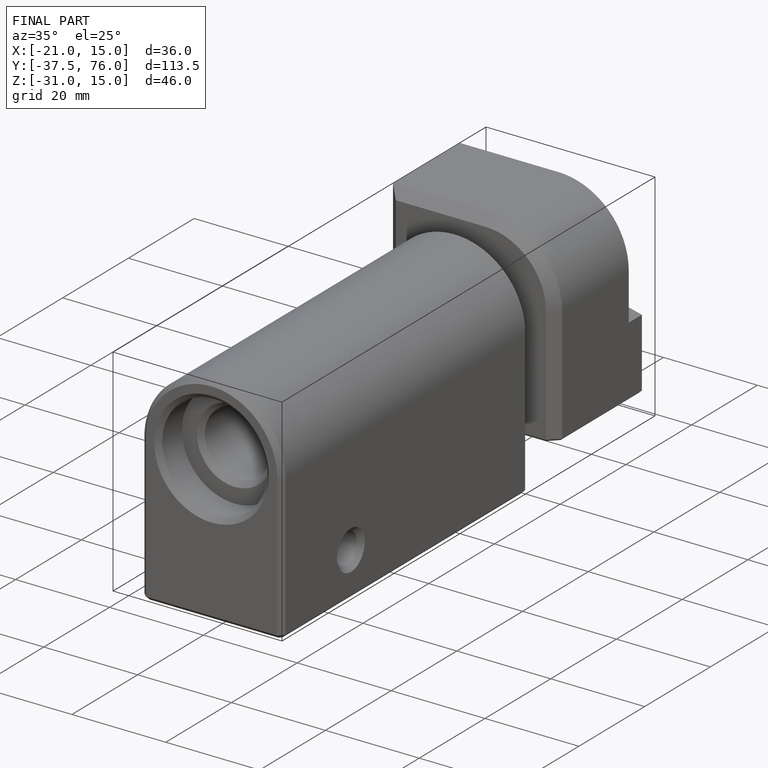
[diagram: finished part — iso view with bounding-box wireframe]
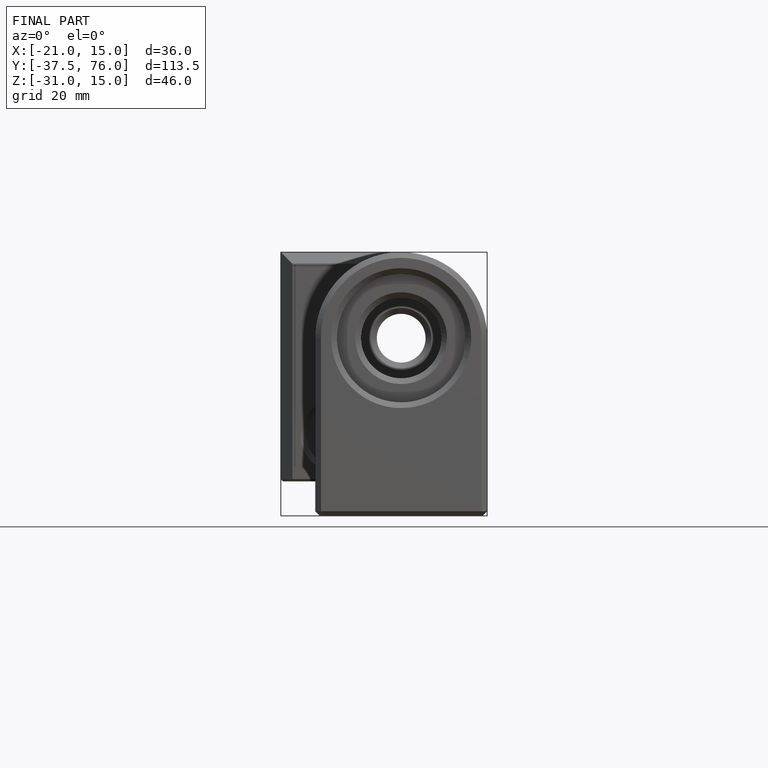
[diagram: finished part — front view with bounding-box wireframe]
